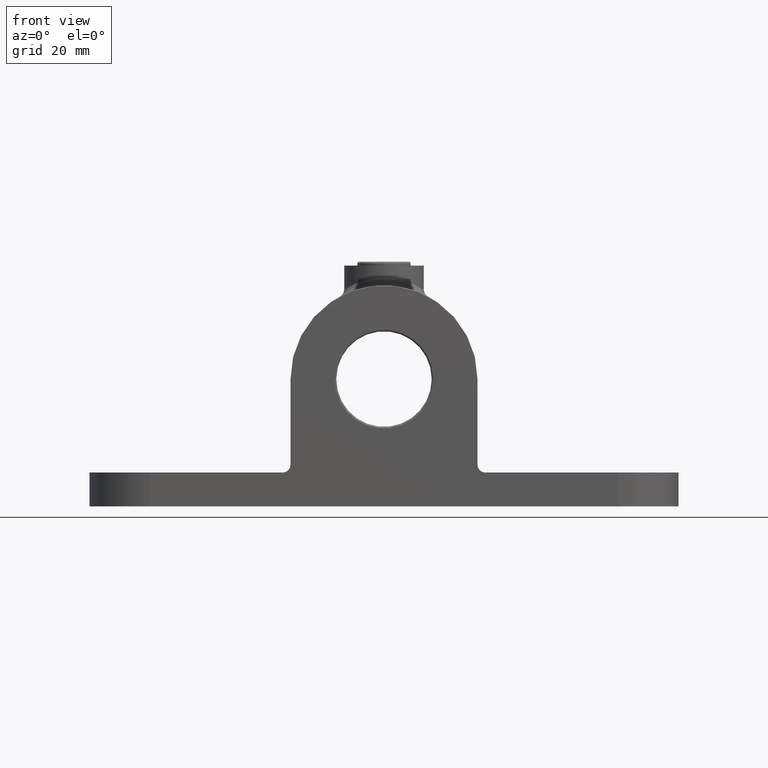
[diagram: clean part render]
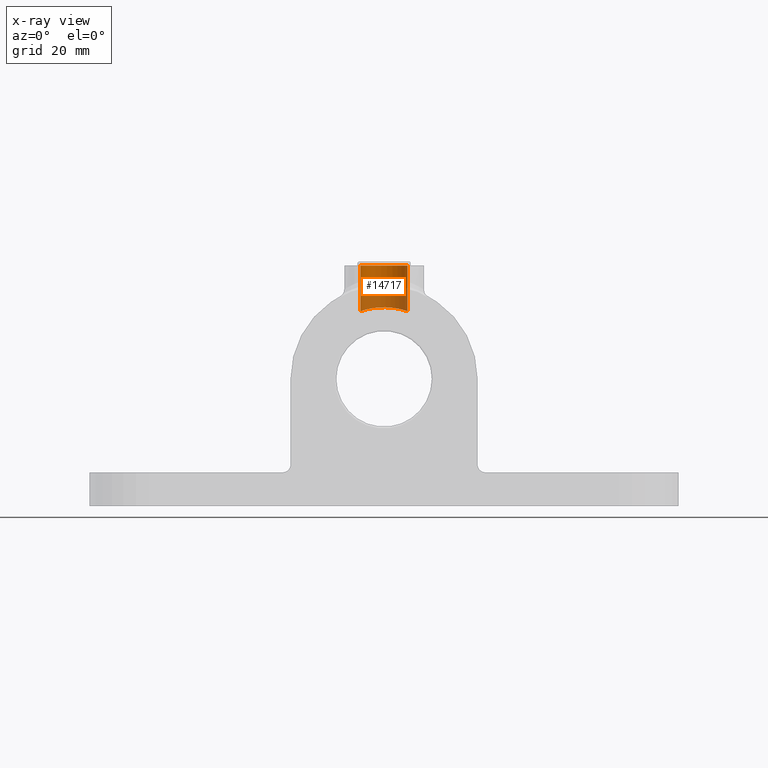
[diagram: x-ray — body ghosted, one internal face saturated and labeled with its STEP entity id]
A machine part, front view, then the same camera in x-ray: the body is ghosted and one INTERNAL B-rep face — a face not visible from any outside direction — is saturated and labeled: STEP entity #14717.
In plain terms, the highlighted cylindrical surface (edge-blend (fillet) strip) has radius 5.9 mm, axis along (0, 0, 1).
Its self-contained STEP definition (entity closure, byte-faithful):
#10 = CARTESIAN_POINT ( 'NONE',  ( 5.700288581353437000, -3.465553718506579900, 49.07367201749632100 ) ) ;
#69 = CARTESIAN_POINT ( 'NONE',  ( -0.7792966384515384000, 0.8611049642852177700, 49.98714456683021700 ) ) ;
#117 = CARTESIAN_POINT ( 'NONE',  ( 5.297805365069574000, -2.374655498447134000, 49.20341653813273600 ) ) ;
#128 = AXIS2_PLACEMENT_3D ( 'NONE', #13205, #9603, #13253 ) ;
#170 = CARTESIAN_POINT ( 'NONE',  ( -4.688314003953420800, -1.397666235263747400, 49.38013019639038200 ) ) ;
#479 = CARTESIAN_POINT ( 'NONE',  ( -5.852218664619819300, -4.225796023473378700, 49.02210171841616000 ) ) ;
#838 = AXIS2_PLACEMENT_3D ( 'NONE', #8675, #13585, #8794 ) ;
#1237 = CARTESIAN_POINT ( 'NONE',  ( -5.899999999999992400, -5.000000000000007100, 49.00558731711434000 ) ) ;
#1245 = CARTESIAN_POINT ( 'NONE',  ( 3.901009467089473500, -0.5572492271389254400, 49.57439182870286500 ) ) ;
#1503 = CARTESIAN_POINT ( 'NONE',  ( -5.899999999999995000, -4.806562791024030700, 49.00558731711435500 ) ) ;
#1751 = CIRCLE ( 'NONE', #838, 5.899999999999988800 ) ;
#1897 = DIRECTION ( 'NONE',  ( -0.0000000000000000000, -0.0000000000000000000, 1.000000000000000000 ) ) ;
#2460 = ORIENTED_EDGE ( 'NONE', *, *, #5100, .F. ) ;
#2484 = CARTESIAN_POINT ( 'NONE',  ( -0.3852845513224108500, 0.9001754436175736200, 50.00005750651379800 ) ) ;
#2601 = CARTESIAN_POINT ( 'NONE',  ( -3.597588860755663600, -0.3197877273164391700, 49.63747309397396600 ) ) ;
#2738 = ORIENTED_EDGE ( 'NONE', *, *, #13604, .T. ) ;
#3297 = FACE_OUTER_BOUND ( 'NONE', #3692, .T. ) ;
#3680 = CARTESIAN_POINT ( 'NONE',  ( 5.861174120720047400, -4.221589336549363300, 49.01919631766605100 ) ) ;
#3692 = EDGE_LOOP ( 'NONE', ( #2460, #8183, #6933, #2738 ) ) ;
#3789 = CARTESIAN_POINT ( 'NONE',  ( 5.116440614131535700, -2.036894276316983300, 49.25895448682168600 ) ) ;
#3843 = CARTESIAN_POINT ( 'NONE',  ( 2.961341189652160200, 0.1176960034156181600, 49.75775371788915200 ) ) ;
#4944 = CARTESIAN_POINT ( 'NONE',  ( 5.586877510254794300, -3.093533376398486900, 49.11111819131510000 ) ) ;
#5050 = CARTESIAN_POINT ( 'NONE',  ( 5.520590496151466900, -2.909455948012464900, 49.13269246620234300 ) ) ;
#5100 = EDGE_CURVE ( 'NONE', #12876, #11574, #12693, .T. ) ;
#5150 = CARTESIAN_POINT ( 'NONE',  ( 4.306235953411770000, -0.9623262592721096900, 49.47786064329151400 ) ) ;
#6185 = CARTESIAN_POINT ( 'NONE',  ( 3.605658795320628100, -0.3138951487793551500, 49.63821372470759700 ) ) ;
#6247 = CARTESIAN_POINT ( 'NONE',  ( 1.538331868077180900, 0.6992231717611471200, 49.93511228516460000 ) ) ;
#6300 = CARTESIAN_POINT ( 'NONE',  ( 4.795410455726926800, -1.557467707773943400, 49.34982441395688100 ) ) ;
#6304 = CARTESIAN_POINT ( 'NONE',  ( 5.899999999999988800, -5.000000000000008000, 60.50000000000000000 ) ) ;
#6347 = CARTESIAN_POINT ( 'NONE',  ( -3.894923884804915000, -0.5641685717345774600, 49.57420469561186100 ) ) ;
#6366 = VECTOR ( 'NONE', #1897, 1000.000000000000000 ) ;
#6397 = CARTESIAN_POINT ( 'NONE',  ( -4.446084662792243200, -1.102567896967362200, 49.44449060285261100 ) ) ;
#6676 = VERTEX_POINT ( 'NONE', #6304 ) ;
#6933 = ORIENTED_EDGE ( 'NONE', *, *, #14842, .T. ) ;
#7448 = CARTESIAN_POINT ( 'NONE',  ( 5.899999999999992400, -5.000000000000007100, 49.00558731711434000 ) ) ;
#7493 = CARTESIAN_POINT ( 'NONE',  ( 1.347677912052307900, 0.7473132791308999500, 49.95049597385244800 ) ) ;
#7548 = CARTESIAN_POINT ( 'NONE',  ( -1.907743146686815300, 0.5965838957647644500, 49.90227652478495900 ) ) ;
#7603 = CARTESIAN_POINT ( 'NONE',  ( -4.038785361070676300, -0.6947561899681520300, 49.54159893261255800 ) ) ;
#7657 = CARTESIAN_POINT ( 'NONE',  ( -5.300385195492853400, -2.380105556314374000, 49.20261350923346600 ) ) ;
#7697 = CARTESIAN_POINT ( 'NONE',  ( -5.899999999999992400, -5.000000000000007100, 49.00558731711434000 ) ) ;
#7808 = CARTESIAN_POINT ( 'NONE',  ( -5.708345529852085300, -3.458468395958489900, 49.07106680427987300 ) ) ;
#7903 = CARTESIAN_POINT ( 'NONE',  ( -5.823132400944032800, -4.030974131054299500, 49.03210972463974600 ) ) ;
#8183 = ORIENTED_EDGE ( 'NONE', *, *, #13286, .F. ) ;
#8356 = LINE ( 'NONE', #9863, #13351 ) ;
#8659 = CARTESIAN_POINT ( 'NONE',  ( 0.7753890217117782600, 0.8617535428778867500, 49.98735493930991000 ) ) ;
#8675 = CARTESIAN_POINT ( 'NONE',  ( 0.0000000000000000000, -5.000000000000008000, 60.50000000000000000 ) ) ;
#8718 = CARTESIAN_POINT ( 'NONE',  ( -1.538436291759508900, 0.7090339313466992300, 49.93816843200412600 ) ) ;
#8778 = CARTESIAN_POINT ( 'NONE',  ( -2.966438377601105600, 0.1143860914043131800, 49.75682868153325700 ) ) ;
#8782 = B_SPLINE_CURVE_WITH_KNOTS ( 'NONE', 3,
 ( #7448, #12515, #3680, #13618, #10, #4944, #5050, #117, #3789, #6300, #14900, #13715, #5150, #1245, #6185, #3843, #13778, #8825, #11231, #6247, #7493, #8659, #14951, #2484, #69, #8718, #7548, #12470, #8778, #10002, #2601, #6347, #7603, #6397, #170, #14995, #7657, #12617, #7808, #7903, #479, #10307, #1503, #7697 ),
 .UNSPECIFIED., .F., .F.,
 ( 4, 2, 2, 2, 2, 2, 2, 2, 2, 2, 2, 2, 2, 2, 2, 2, 2, 2, 2, 2, 2, 4 ),
 ( 8.673617379884035500E-019, 0.001160933567728044100, 0.001741400351592067200, 0.002321867135456090400, 0.003482800703184133600, 0.004063267487048155900, 0.004643734270912179000, 0.005804667838640220100, 0.006965601406368261200, 0.007546068190232280800, 0.008126534974096301400, 0.009287468541824342400, 0.01044840210955238400, 0.01160933567728042500, 0.01277026924500846200, 0.01335073602887248600, 0.01393120281273650700, 0.01509213638046454800, 0.01625306994819259200, 0.01741400351592063300, 0.01799447029978465400, 0.01857493708364867400 ),
 .UNSPECIFIED. ) ;
#8794 = DIRECTION ( 'NONE',  ( 1.000000000000000000, 0.0000000000000000000, 0.0000000000000000000 ) ) ;
#8825 = CARTESIAN_POINT ( 'NONE',  ( 2.090574988835959000, 0.5205412084186605800, 49.87907808908838800 ) ) ;
#9114 = VERTEX_POINT ( 'NONE', #15699 ) ;
#9603 = DIRECTION ( 'NONE',  ( -0.0000000000000000000, -0.0000000000000000000, 1.000000000000000000 ) ) ;
#9863 = CARTESIAN_POINT ( 'NONE',  ( 5.899999999999992400, -5.000000000000008000, 60.50000000000000000 ) ) ;
#10002 = CARTESIAN_POINT ( 'NONE',  ( -3.443698726007803100, -0.2054599261758431600, 49.66825173730691000 ) ) ;
#10307 = CARTESIAN_POINT ( 'NONE',  ( -5.890510443282705600, -4.613035126437033300, 49.00888876229744500 ) ) ;
#11231 = CARTESIAN_POINT ( 'NONE',  ( 1.909272364198206300, 0.5859008885935316200, 49.89942447837674400 ) ) ;
#11348 = CARTESIAN_POINT ( 'NONE',  ( -5.899999999999988800, -5.000000000000007100, 60.50000000000000000 ) ) ;
#11574 = VERTEX_POINT ( 'NONE', #11348 ) ;
#12470 = CARTESIAN_POINT ( 'NONE',  ( -2.625827637699865000, 0.2977603223584557300, 49.81112062450559800 ) ) ;
#12515 = CARTESIAN_POINT ( 'NONE',  ( 5.899999999999991500, -4.607219124016126000, 49.00558731711434000 ) ) ;
#12617 = CARTESIAN_POINT ( 'NONE',  ( -5.595659030289205300, -3.090411004064621500, 49.10884551293289500 ) ) ;
#12693 = LINE ( 'NONE', #15384, #6366 ) ;
#12876 = VERTEX_POINT ( 'NONE', #1237 ) ;
#13205 = CARTESIAN_POINT ( 'NONE',  ( 0.0000000000000000000, -5.000000000000008000, 60.50000000000000000 ) ) ;
#13253 = DIRECTION ( 'NONE',  ( 1.000000000000000000, 0.0000000000000000000, 0.0000000000000000000 ) ) ;
#13286 = EDGE_CURVE ( 'NONE', #9114, #12876, #8782, .T. ) ;
#13351 = VECTOR ( 'NONE', #13636, 1000.000000000000000 ) ;
#13585 = DIRECTION ( 'NONE',  ( -0.0000000000000000000, -0.0000000000000000000, 1.000000000000000000 ) ) ;
#13604 = EDGE_CURVE ( 'NONE', #6676, #11574, #1751, .T. ) ;
#13618 = CARTESIAN_POINT ( 'NONE',  ( 5.747493635036653000, -3.653286138852773300, 49.05778175081322700 ) ) ;
#13636 = DIRECTION ( 'NONE',  ( -0.0000000000000000000, -0.0000000000000000000, 1.000000000000000000 ) ) ;
#13715 = CARTESIAN_POINT ( 'NONE',  ( 4.434960036571361300, -1.104080172019702700, 49.44554680703021200 ) ) ;
#13740 = CYLINDRICAL_SURFACE ( 'NONE', #128, 5.899999999999992400 ) ;
#13778 = CARTESIAN_POINT ( 'NONE',  ( 2.622431321001829300, 0.2990914351244504700, 49.81153003998523600 ) ) ;
#14717 = ADVANCED_FACE ( 'NONE', ( #3297 ), #13740, .F. ) ;
#14842 = EDGE_CURVE ( 'NONE', #9114, #6676, #8356, .T. ) ;
#14900 = CARTESIAN_POINT ( 'NONE',  ( 4.679500392762668600, -1.401481151061020300, 49.38154912533406800 ) ) ;
#14951 = CARTESIAN_POINT ( 'NONE',  ( 0.3906392077201968900, 0.8998233414524607900, 49.99994209525917200 ) ) ;
#14995 = CARTESIAN_POINT ( 'NONE',  ( -5.115229529405318100, -2.034949643981664600, 49.25930591607456000 ) ) ;
#15384 = CARTESIAN_POINT ( 'NONE',  ( -5.899999999999992400, -5.000000000000007100, 60.50000000000000000 ) ) ;
#15699 = CARTESIAN_POINT ( 'NONE',  ( 5.899999999999992400, -5.000000000000007100, 49.00558731711434000 ) ) ;